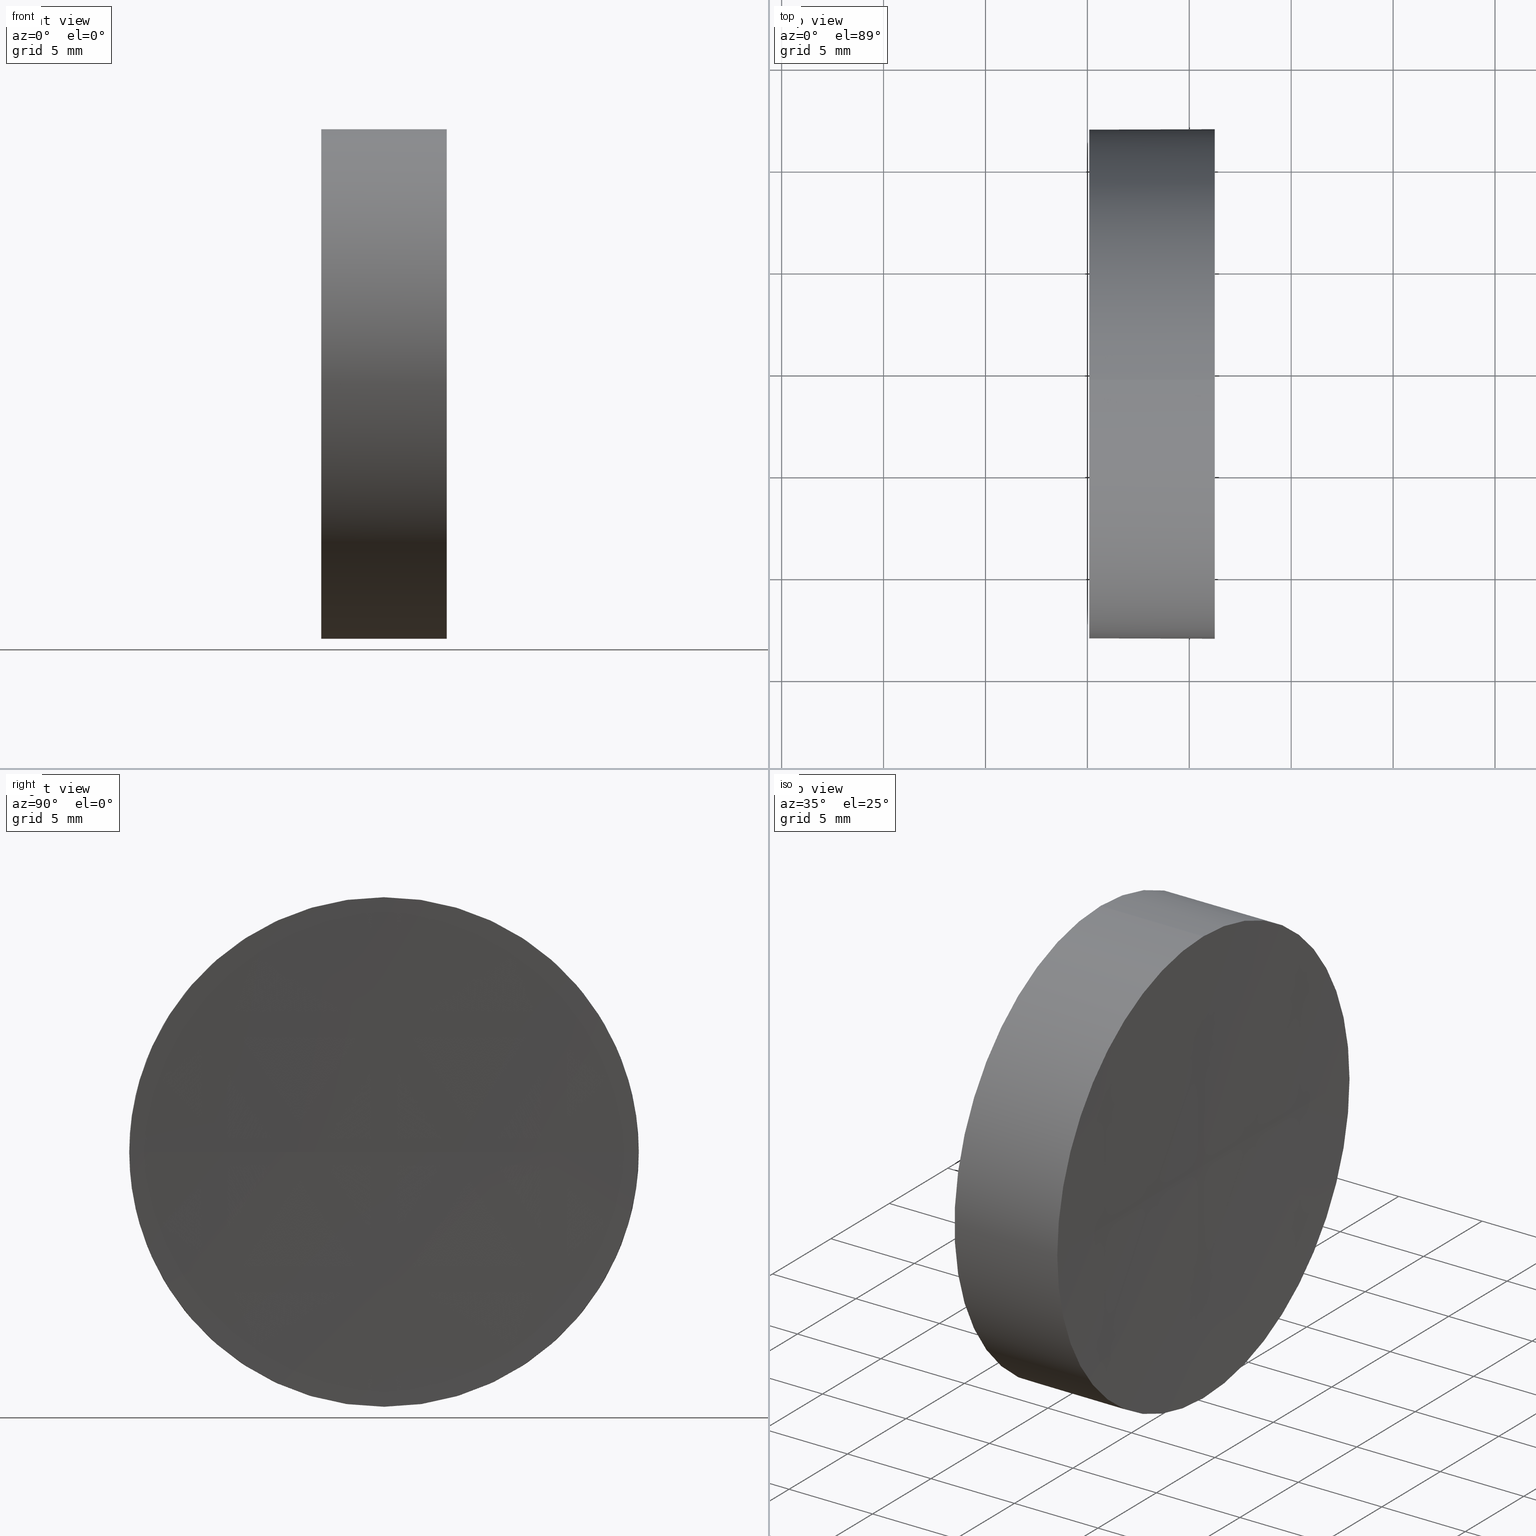
[diagram: canonical four-view strip — front | top / right | iso, engineering-drawing reading convention]
A machine part, canonical four-view strip (front | top / right | iso — engineering-drawing reading convention). The complete STEP part file that produces these views, byte-faithful:
ISO-10303-21;
HEADER;
FILE_DESCRIPTION (( 'STEP AP214' ),
    '1' );
FILE_NAME ('270030.STEP',
    '2019-07-22T07:29:31',
    ( '' ),
    ( '' ),
    'SwSTEP 2.0',
    'SolidWorks 2016',
    '' );
FILE_SCHEMA (( 'AUTOMOTIVE_DESIGN' ));
ENDSEC;

DATA;
#1 = CARTESIAN_POINT ( 'NONE',  ( 115.0926555349195200, 69.37802112337243400, -12.49999999999999600 ) ) ;
#2 =( NAMED_UNIT ( * ) SI_UNIT ( $, .STERADIAN. ) SOLID_ANGLE_UNIT ( ) );
#3 = PRESENTATION_STYLE_ASSIGNMENT (( #55 ) ) ;
#4 = CIRCLE ( 'NONE', #9, 500.0000000000000000 ) ;
#5 = ADVANCED_FACE ( 'NONE', ( #158 ), #87, .F. ) ;
#6 = ADVANCED_FACE ( 'NONE', ( #107 ), #186, .T. ) ;
#7 = FACE_OUTER_BOUND ( 'NONE', #20, .T. ) ;
#8 = EDGE_CURVE ( 'NONE', #36, #23, #4, .T. ) ;
#9 = AXIS2_PLACEMENT_3D ( 'NONE', #10, #167, #150 ) ;
#10 = CARTESIAN_POINT ( 'NONE',  ( 621.0926555117259800, 69.37802112337145400, 0.0000000000000000000 ) ) ;
#11 = DIRECTION ( 'NONE',  ( -1.000000000000000000, -0.0000000000000000000, -0.0000000000000000000 ) ) ;
#12 = SPHERICAL_SURFACE ( 'NONE', #81, 500.0000000000000000 ) ;
#13 = VERTEX_POINT ( 'NONE', #103 ) ;
#14 = DIRECTION ( 'NONE',  ( 0.0000000000000000000, 0.0000000000000000000, 1.000000000000000000 ) ) ;
#15 =( LENGTH_UNIT ( ) NAMED_UNIT ( * ) SI_UNIT ( .MILLI., .METRE. ) );
#16 = CARTESIAN_POINT ( 'NONE',  ( 0.0000000000000000000, 0.0000000000000000000, 0.0000000000000000000 ) ) ;
#17 = PRODUCT_CONTEXT ( 'NONE', #109, 'mechanical' ) ;
#18 = EDGE_LOOP ( 'NONE', ( #33, #139, #54, #132 ) ) ;
#19 = EDGE_CURVE ( 'NONE', #94, #13, #79, .T. ) ;
#20 = EDGE_LOOP ( 'NONE', ( #169, #43, #50, #96, #126 ) ) ;
#21 = EDGE_CURVE ( 'NONE', #123, #56, #99, .T. ) ;
#22 = ADVANCED_FACE ( 'NONE', ( #7 ), #40, .T. ) ;
#23 = VERTEX_POINT ( 'NONE', #180 ) ;
#24 = DIRECTION ( 'NONE',  ( -1.000000000000000000, -0.0000000000000000000, -0.0000000000000000000 ) ) ;
#25 = DIRECTION ( 'NONE',  ( 0.0000000000000000000, 0.0000000000000000000, -1.000000000000000000 ) ) ;
#26 = DIRECTION ( 'NONE',  ( -1.000000000000000000, -0.0000000000000000000, -0.0000000000000000000 ) ) ;
#27 = CARTESIAN_POINT ( 'NONE',  ( 115.0926555349195200, 69.37802112337243400, 0.0000000000000000000 ) ) ;
#28 = CARTESIAN_POINT ( 'NONE',  ( 108.9851430021651000, 69.37802112337243400, 12.50000000000001100 ) ) ;
#29 = DIRECTION ( 'NONE',  ( -1.000000000000000000, -0.0000000000000000000, -0.0000000000000000000 ) ) ;
#30 = CARTESIAN_POINT ( 'NONE',  ( 621.0926555117259800, 69.37802112337145400, 0.0000000000000000000 ) ) ;
#31 = SURFACE_STYLE_USAGE ( .BOTH. , #80 ) ;
#32 = VECTOR ( 'NONE', #124, 1000.000000000000000 ) ;
#33 = ORIENTED_EDGE ( 'NONE', *, *, #160, .F. ) ;
#34 = CIRCLE ( 'NONE', #116, 12.50000000000002500 ) ;
#35 =( LENGTH_UNIT ( ) NAMED_UNIT ( * ) SI_UNIT ( .MILLI., .METRE. ) );
#36 = VERTEX_POINT ( 'NONE', #64 ) ;
#37 = DIRECTION ( 'NONE',  ( -1.000000000000000000, -0.0000000000000000000, -0.0000000000000000000 ) ) ;
#38 = DIRECTION ( 'NONE',  ( 1.000000000000000000, 0.0000000000000000000, 0.0000000000000000000 ) ) ;
#39 = PRESENTATION_LAYER_ASSIGNMENT (  '', '', ( #159 ) ) ;
#40 = CYLINDRICAL_SURFACE ( 'NONE', #100, 12.50000000000001100 ) ;
#41 = EDGE_LOOP ( 'NONE', ( #173, #102 ) ) ;
#42 = SURFACE_STYLE_FILL_AREA ( #95 ) ;
#43 = ORIENTED_EDGE ( 'NONE', *, *, #125, .T. ) ;
#44 = ADVANCED_BREP_SHAPE_REPRESENTATION ( '270030', ( #182, #127 ), #115 ) ;
#45 = DIRECTION ( 'NONE',  ( 0.0000000000000000000, 1.000000000000000000, 0.0000000000000000000 ) ) ;
#46 = ORIENTED_EDGE ( 'NONE', *, *, #71, .F. ) ;
#47 = DIRECTION ( 'NONE',  ( 0.0000000000000000000, 0.0000000000000000000, 1.000000000000000000 ) ) ;
#48 = CARTESIAN_POINT ( 'NONE',  ( 621.0926555117259800, 69.37802112337145400, 0.0000000000000000000 ) ) ;
#49 = PRODUCT_DEFINITION_CONTEXT ( 'detailed design', #57, 'design' ) ;
#50 = ORIENTED_EDGE ( 'NONE', *, *, #58, .F. ) ;
#51 = DIRECTION ( 'NONE',  ( 0.0000000000000000000, 0.0000000000000000000, -1.000000000000000000 ) ) ;
#52 = CARTESIAN_POINT ( 'NONE',  ( 121.2489299334208700, 69.37802112337243400, 0.0000000000000000000 ) ) ;
#53 = AXIS2_PLACEMENT_3D ( 'NONE', #117, #26, #105 ) ;
#54 = ORIENTED_EDGE ( 'NONE', *, *, #135, .F. ) ;
#55 = SURFACE_STYLE_USAGE ( .BOTH. , #68 ) ;
#56 = VERTEX_POINT ( 'NONE', #77 ) ;
#57 = APPLICATION_CONTEXT ( 'automotive_design' ) ;
#58 = EDGE_CURVE ( 'NONE', #13, #94, #181, .T. ) ;
#59 = ADVANCED_FACE ( 'NONE', ( #101 ), #12, .F. ) ;
#60 = LINE ( 'NONE', #155, #32 ) ;
#61 = EDGE_CURVE ( 'NONE', #129, #36, #143, .T. ) ;
#62 = PRODUCT_DEFINITION ( 'δ֪', '', #154, #49 ) ;
#63 = AXIS2_PLACEMENT_3D ( 'NONE', #92, #93, #104 ) ;
#64 = CARTESIAN_POINT ( 'NONE',  ( 121.2489299334208500, 81.87802112337134000, 0.0000000000000000000 ) ) ;
#65 = ORIENTED_EDGE ( 'NONE', *, *, #21, .T. ) ;
#66 = DIRECTION ( 'NONE',  ( 0.0000000000000000000, 1.000000000000000000, 0.0000000000000000000 ) ) ;
#67 = UNCERTAINTY_MEASURE_WITH_UNIT (LENGTH_MEASURE( 1.000000000000000100E-005 ), #35, 'distance_accuracy_value', 'NONE');
#68 = SURFACE_SIDE_STYLE ('',( #72 ) ) ;
#69 =( NAMED_UNIT ( * ) PLANE_ANGLE_UNIT ( ) SI_UNIT ( $, .RADIAN. ) );
#70 = DIRECTION ( 'NONE',  ( 0.0000000000000000000, 0.0000000000000000000, 1.000000000000000000 ) ) ;
#71 = EDGE_CURVE ( 'NONE', #56, #129, #34, .T. ) ;
#72 = SURFACE_STYLE_FILL_AREA ( #172 ) ;
#73 = AXIS2_PLACEMENT_3D ( 'NONE', #149, #11, #168 ) ;
#74 = ADVANCED_FACE ( 'NONE', ( #184 ), #164, .F. ) ;
#75 = MECHANICAL_DESIGN_GEOMETRIC_PRESENTATION_REPRESENTATION (  '', ( #134 ), #90 ) ;
#76 = EDGE_CURVE ( 'NONE', #129, #13, #136, .T. ) ;
#77 = CARTESIAN_POINT ( 'NONE',  ( 121.2489299334208500, 56.87802112337254800, -1.530808498934056000E-015 ) ) ;
#78 = DIRECTION ( 'NONE',  ( -1.000000000000000000, -0.0000000000000000000, -0.0000000000000000000 ) ) ;
#79 = CIRCLE ( 'NONE', #63, 12.49999999999999600 ) ;
#80 = SURFACE_SIDE_STYLE ('',( #42 ) ) ;
#81 = AXIS2_PLACEMENT_3D ( 'NONE', #106, #133, #45 ) ;
#82 = CARTESIAN_POINT ( 'NONE',  ( 121.2489299334208700, 69.37802112337243400, -12.50000000000002500 ) ) ;
#83 =( LENGTH_UNIT ( ) NAMED_UNIT ( * ) SI_UNIT ( .MILLI., .METRE. ) );
#84 =( NAMED_UNIT ( * ) PLANE_ANGLE_UNIT ( ) SI_UNIT ( $, .RADIAN. ) );
#85 = APPLICATION_PROTOCOL_DEFINITION ( 'draft international standard', 'automotive_design', 1998, #57 ) ;
#86 = COLOUR_RGB ( '',1.000000000000000000, 1.000000000000000000, 1.000000000000000000 ) ;
#87 = SPHERICAL_SURFACE ( 'NONE', #156, 500.0000000000000000 ) ;
#88 = PRODUCT_DEFINITION_SHAPE ( 'NONE', 'NONE',  #62 ) ;
#89 = ORIENTED_EDGE ( 'NONE', *, *, #61, .F. ) ;
#90 =( GEOMETRIC_REPRESENTATION_CONTEXT ( 3 ) GLOBAL_UNCERTAINTY_ASSIGNED_CONTEXT ( ( #114 ) ) GLOBAL_UNIT_ASSIGNED_CONTEXT ( ( #15, #69, #185 ) ) REPRESENTATION_CONTEXT ( 'NONE', 'WORKASPACE' ) );
#91 = CARTESIAN_POINT ( 'NONE',  ( 115.0926555349195200, 69.37802112337243400, 0.0000000000000000000 ) ) ;
#92 = CARTESIAN_POINT ( 'NONE',  ( 115.0926555349195200, 69.37802112337243400, 0.0000000000000000000 ) ) ;
#93 = DIRECTION ( 'NONE',  ( -1.000000000000000000, -0.0000000000000000000, -0.0000000000000000000 ) ) ;
#94 = VERTEX_POINT ( 'NONE', #1 ) ;
#95 = FILL_AREA_STYLE ('',( #171 ) ) ;
#96 = ORIENTED_EDGE ( 'NONE', *, *, #76, .F. ) ;
#97 = CARTESIAN_POINT ( 'NONE',  ( 121.2489299334208700, 69.37802112337243400, 0.0000000000000000000 ) ) ;
#98 = CARTESIAN_POINT ( 'NONE',  ( 121.2489299334208700, 69.37802112337243400, 0.0000000000000000000 ) ) ;
#99 = CIRCLE ( 'NONE', #53, 12.50000000000002500 ) ;
#100 = AXIS2_PLACEMENT_3D ( 'NONE', #151, #166, #47 ) ;
#101 = FACE_OUTER_BOUND ( 'NONE', #147, .T. ) ;
#102 = ORIENTED_EDGE ( 'NONE', *, *, #19, .T. ) ;
#103 = CARTESIAN_POINT ( 'NONE',  ( 115.0926555349195200, 69.37802112337243400, 12.49999999999999600 ) ) ;
#104 = DIRECTION ( 'NONE',  ( 0.0000000000000000000, 0.0000000000000000000, 1.000000000000000000 ) ) ;
#105 = DIRECTION ( 'NONE',  ( 0.0000000000000000000, 0.0000000000000000000, 1.000000000000000000 ) ) ;
#106 = CARTESIAN_POINT ( 'NONE',  ( 621.0926555117259800, 69.37802112337145400, 0.0000000000000000000 ) ) ;
#107 = FACE_OUTER_BOUND ( 'NONE', #131, .T. ) ;
#108 = AXIS2_PLACEMENT_3D ( 'NONE', #98, #152, #14 ) ;
#109 = APPLICATION_CONTEXT ( 'automotive_design' ) ;
#110 = FILL_AREA_STYLE_COLOUR ( '', #86 ) ;
#111 = PRESENTATION_LAYER_ASSIGNMENT (  '', '', ( #134 ) ) ;
#112 = DIRECTION ( 'NONE',  ( 0.0000000000000000000, 0.0000000000000000000, 1.000000000000000000 ) ) ;
#113 = SHAPE_DEFINITION_REPRESENTATION ( #88, #44 ) ;
#114 = UNCERTAINTY_MEASURE_WITH_UNIT (LENGTH_MEASURE( 1.000000000000000100E-005 ), #15, 'distance_accuracy_value', 'NONE');
#115 =( GEOMETRIC_REPRESENTATION_CONTEXT ( 3 ) GLOBAL_UNCERTAINTY_ASSIGNED_CONTEXT ( ( #67 ) ) GLOBAL_UNIT_ASSIGNED_CONTEXT ( ( #35, #170, #183 ) ) REPRESENTATION_CONTEXT ( 'NONE', 'WORKASPACE' ) );
#116 = AXIS2_PLACEMENT_3D ( 'NONE', #52, #29, #112 ) ;
#117 = CARTESIAN_POINT ( 'NONE',  ( 121.2489299334208700, 69.37802112337243400, 0.0000000000000000000 ) ) ;
#118 = DIRECTION ( 'NONE',  ( 0.0000000000000000000, 0.0000000000000000000, 1.000000000000000000 ) ) ;
#119 = DIRECTION ( 'NONE',  ( 0.0000000000000000000, 1.224646799147353200E-016, -1.000000000000000000 ) ) ;
#120 = DIRECTION ( 'NONE',  ( 1.000000000000000000, 0.0000000000000000000, 0.0000000000000000000 ) ) ;
#121 = PRODUCT_RELATED_PRODUCT_CATEGORY ( 'part', '', ( #161 ) ) ;
#122 = DIRECTION ( 'NONE',  ( 0.0000000000000000000, 0.0000000000000000000, 1.000000000000000000 ) ) ;
#123 = VERTEX_POINT ( 'NONE', #82 ) ;
#124 = DIRECTION ( 'NONE',  ( -1.000000000000000000, -0.0000000000000000000, -0.0000000000000000000 ) ) ;
#125 = EDGE_CURVE ( 'NONE', #123, #94, #60, .T. ) ;
#126 = ORIENTED_EDGE ( 'NONE', *, *, #61, .T. ) ;
#127 = AXIS2_PLACEMENT_3D ( 'NONE', #16, #122, #38 ) ;
#128 = AXIS2_PLACEMENT_3D ( 'NONE', #97, #78, #70 ) ;
#129 = VERTEX_POINT ( 'NONE', #153 ) ;
#130 = MECHANICAL_DESIGN_GEOMETRIC_PRESENTATION_REPRESENTATION (  '', ( #159 ), #138 ) ;
#131 = EDGE_LOOP ( 'NONE', ( #137, #65, #178, #165, #179 ) ) ;
#132 = ORIENTED_EDGE ( 'NONE', *, *, #8, .T. ) ;
#133 = DIRECTION ( 'NONE',  ( 0.0000000000000000000, 0.0000000000000000000, -1.000000000000000000 ) ) ;
#134 = STYLED_ITEM ( 'NONE', ( #157 ), #44 ) ;
#135 = EDGE_CURVE ( 'NONE', #36, #123, #145, .T. ) ;
#136 = LINE ( 'NONE', #28, #142 ) ;
#137 = ORIENTED_EDGE ( 'NONE', *, *, #125, .F. ) ;
#138 =( GEOMETRIC_REPRESENTATION_CONTEXT ( 3 ) GLOBAL_UNCERTAINTY_ASSIGNED_CONTEXT ( ( #146 ) ) GLOBAL_UNIT_ASSIGNED_CONTEXT ( ( #83, #84, #2 ) ) REPRESENTATION_CONTEXT ( 'NONE', 'WORKASPACE' ) );
#139 = ORIENTED_EDGE ( 'NONE', *, *, #21, .F. ) ;
#140 = AXIS2_PLACEMENT_3D ( 'NONE', #91, #120, #51 ) ;
#141 = APPLICATION_PROTOCOL_DEFINITION ( 'draft international standard', 'automotive_design', 1998, #109 ) ;
#142 = VECTOR ( 'NONE', #37, 1000.000000000000000 ) ;
#143 = CIRCLE ( 'NONE', #108, 12.50000000000002500 ) ;
#144 = ORIENTED_EDGE ( 'NONE', *, *, #160, .T. ) ;
#145 = CIRCLE ( 'NONE', #128, 12.50000000000002500 ) ;
#146 = UNCERTAINTY_MEASURE_WITH_UNIT (LENGTH_MEASURE( 1.000000000000000100E-005 ), #83, 'distance_accuracy_value', 'NONE');
#147 = EDGE_LOOP ( 'NONE', ( #46, #144, #163, #89 ) ) ;
#148 = AXIS2_PLACEMENT_3D ( 'NONE', #30, #119, #174 ) ;
#149 = CARTESIAN_POINT ( 'NONE',  ( 108.9851430021651000, 69.37802112337243400, 0.0000000000000000000 ) ) ;
#150 = DIRECTION ( 'NONE',  ( 1.000000000000000000, 0.0000000000000000000, 0.0000000000000000000 ) ) ;
#151 = CARTESIAN_POINT ( 'NONE',  ( 108.9851430021651000, 69.37802112337243400, 0.0000000000000000000 ) ) ;
#152 = DIRECTION ( 'NONE',  ( -1.000000000000000000, -0.0000000000000000000, -0.0000000000000000000 ) ) ;
#153 = CARTESIAN_POINT ( 'NONE',  ( 121.2489299334208700, 69.37802112337243400, 12.50000000000002500 ) ) ;
#154 = PRODUCT_DEFINITION_FORMATION_WITH_SPECIFIED_SOURCE ( '�κ�', '', #161, .NOT_KNOWN. ) ;
#155 = CARTESIAN_POINT ( 'NONE',  ( 108.9851430021651000, 69.37802112337243400, -12.50000000000001100 ) ) ;
#156 = AXIS2_PLACEMENT_3D ( 'NONE', #48, #25, #66 ) ;
#157 = PRESENTATION_STYLE_ASSIGNMENT (( #31 ) ) ;
#158 = FACE_OUTER_BOUND ( 'NONE', #18, .T. ) ;
#159 = STYLED_ITEM ( 'NONE', ( #3 ), #182 ) ;
#160 = EDGE_CURVE ( 'NONE', #56, #23, #177, .T. ) ;
#161 = PRODUCT ( '270030', '270030', '', ( #17 ) ) ;
#162 = COLOUR_RGB ( '',1.000000000000000000, 1.000000000000000000, 1.000000000000000000 ) ;
#163 = ORIENTED_EDGE ( 'NONE', *, *, #8, .F. ) ;
#164 = PLANE ( 'NONE',  #140 ) ;
#165 = ORIENTED_EDGE ( 'NONE', *, *, #76, .T. ) ;
#166 = DIRECTION ( 'NONE',  ( -1.000000000000000000, -0.0000000000000000000, -0.0000000000000000000 ) ) ;
#167 = DIRECTION ( 'NONE',  ( 0.0000000000000000000, 0.0000000000000000000, 1.000000000000000000 ) ) ;
#168 = DIRECTION ( 'NONE',  ( 0.0000000000000000000, 0.0000000000000000000, 1.000000000000000000 ) ) ;
#169 = ORIENTED_EDGE ( 'NONE', *, *, #135, .T. ) ;
#170 =( NAMED_UNIT ( * ) PLANE_ANGLE_UNIT ( ) SI_UNIT ( $, .RADIAN. ) );
#171 = FILL_AREA_STYLE_COLOUR ( '', #162 ) ;
#172 = FILL_AREA_STYLE ('',( #110 ) ) ;
#173 = ORIENTED_EDGE ( 'NONE', *, *, #58, .T. ) ;
#174 = DIRECTION ( 'NONE',  ( 0.0000000000000000000, 1.000000000000000000, 1.224646799147353200E-016 ) ) ;
#175 = CLOSED_SHELL ( 'NONE', ( #22, #59, #5, #6, #74 ) ) ;
#176 = AXIS2_PLACEMENT_3D ( 'NONE', #27, #24, #118 ) ;
#177 = CIRCLE ( 'NONE', #148, 500.0000000000000000 ) ;
#178 = ORIENTED_EDGE ( 'NONE', *, *, #71, .T. ) ;
#179 = ORIENTED_EDGE ( 'NONE', *, *, #19, .F. ) ;
#180 = CARTESIAN_POINT ( 'NONE',  ( 121.0926555117259900, 69.37802112337148200, 0.0000000000000000000 ) ) ;
#181 = CIRCLE ( 'NONE', #176, 12.49999999999999600 ) ;
#182 = MANIFOLD_SOLID_BREP ( '��ת1', #175 ) ;
#183 =( NAMED_UNIT ( * ) SI_UNIT ( $, .STERADIAN. ) SOLID_ANGLE_UNIT ( ) );
#184 = FACE_OUTER_BOUND ( 'NONE', #41, .T. ) ;
#185 =( NAMED_UNIT ( * ) SI_UNIT ( $, .STERADIAN. ) SOLID_ANGLE_UNIT ( ) );
#186 = CYLINDRICAL_SURFACE ( 'NONE', #73, 12.50000000000001100 ) ;
ENDSEC;
END-ISO-10303-21;
